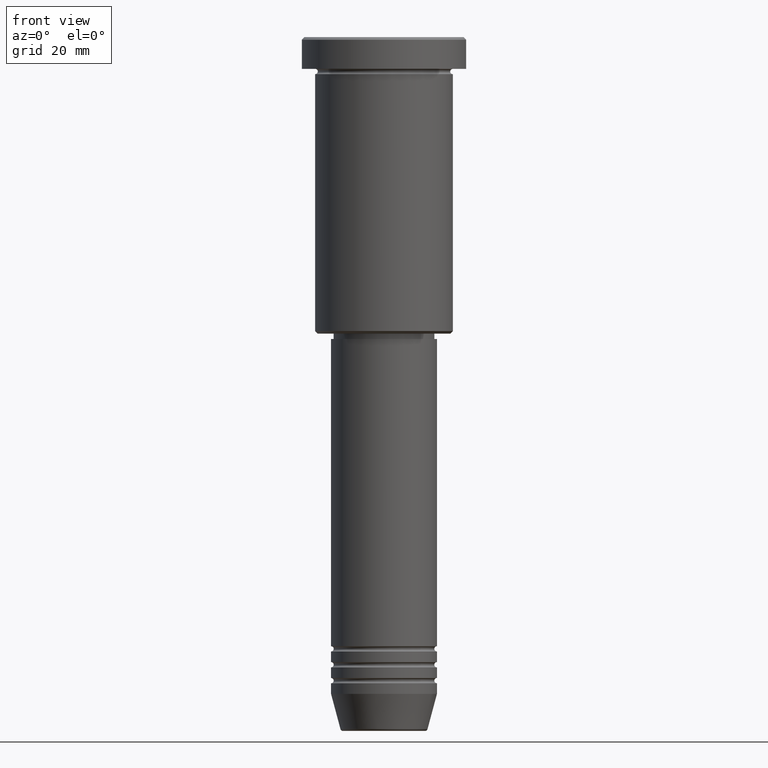
[diagram: clean part render]
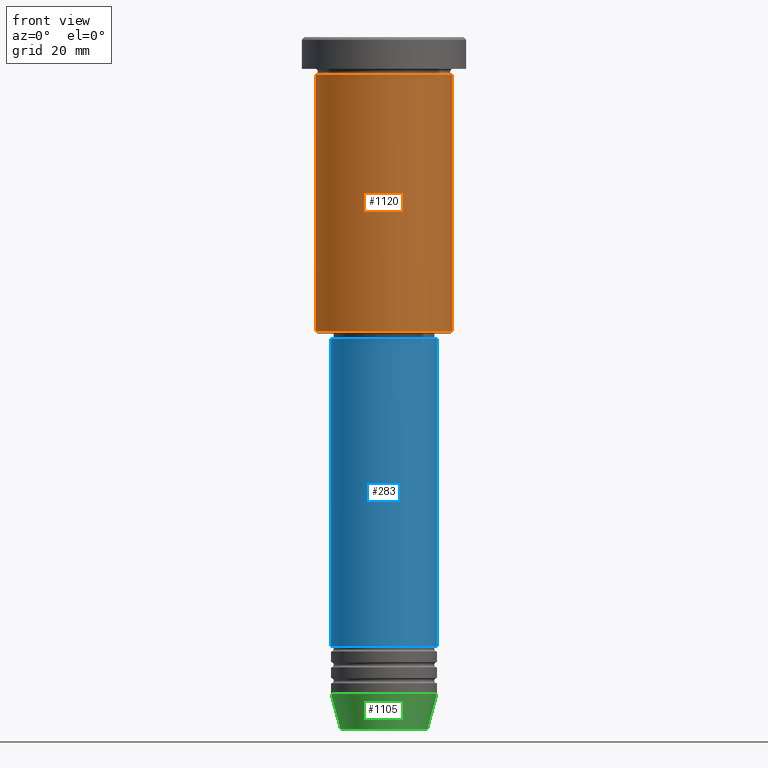
[diagram: same view with three faces highlighted in distinct colors, each labeled with its STEP entity id]
A machine part, front view with three faces highlighted in distinct colors.
Their STEP definitions:

[orange] entity #1120 — the highlighted cylindrical surface (partial cylindrical patch) has radius 13 mm, axis along (-0, -0, 1).
#10 = DIRECTION ( 'NONE',  ( -0.000000000000000000, -0.000000000000000000, 1.000000000000000000 ) ) ;
#45 = ORIENTED_EDGE ( 'NONE', *, *, #624, .F. ) ;
#57 = ORIENTED_EDGE ( 'NONE', *, *, #308, .T. ) ;
#68 = AXIS2_PLACEMENT_3D ( 'NONE', #630, #10, #559 ) ;
#77 = EDGE_CURVE ( 'NONE', #670, #722, #1145, .T. ) ;
#156 = VECTOR ( 'NONE', #1063, 1000.000000000000000 ) ;
#175 = CIRCLE ( 'NONE', #1172, 13.00000000000000000 ) ;
#202 = DIRECTION ( 'NONE',  ( -0.000000000000000000, -0.000000000000000000, 1.000000000000000000 ) ) ;
#203 = VERTEX_POINT ( 'NONE', #990 ) ;
#225 = LINE ( 'NONE', #856, #537 ) ;
#308 = EDGE_CURVE ( 'NONE', #727, #203, #225, .T. ) ;
#322 = CARTESIAN_POINT ( 'NONE',  ( -13.00000000000000000, 1.592040838891559095E-15, 0.000000000000000000 ) ) ;
#350 = ORIENTED_EDGE ( 'NONE', *, *, #437, .T. ) ;
#400 = DIRECTION ( 'NONE',  ( -0.000000000000000000, -0.000000000000000000, 1.000000000000000000 ) ) ;
#437 = EDGE_CURVE ( 'NONE', #670, #727, #478, .T. ) ;
#478 = CIRCLE ( 'NONE', #498, 13.00000000000000000 ) ;
#483 = ORIENTED_EDGE ( 'NONE', *, *, #77, .F. ) ;
#498 = AXIS2_PLACEMENT_3D ( 'NONE', #805, #796, #720 ) ;
#537 = VECTOR ( 'NONE', #400, 1000.000000000000000 ) ;
#559 = DIRECTION ( 'NONE',  ( 1.000000000000000000, 0.000000000000000000, 0.000000000000000000 ) ) ;
#617 = CYLINDRICAL_SURFACE ( 'NONE', #68, 13.00000000000000000 ) ;
#624 = EDGE_CURVE ( 'NONE', #722, #203, #175, .T. ) ;
#630 = CARTESIAN_POINT ( 'NONE',  ( 0.000000000000000000, 0.000000000000000000, 0.000000000000000000 ) ) ;
#670 = VERTEX_POINT ( 'NONE', #815 ) ;
#705 = FACE_OUTER_BOUND ( 'NONE', #854, .T. ) ;
#720 = DIRECTION ( 'NONE',  ( -1.000000000000000000, 0.000000000000000000, 0.000000000000000000 ) ) ;
#722 = VERTEX_POINT ( 'NONE', #896 ) ;
#727 = VERTEX_POINT ( 'NONE', #1073 ) ;
#731 = CARTESIAN_POINT ( 'NONE',  ( 0.000000000000000000, 0.000000000000000000, -6.999999999999995559 ) ) ;
#750 = DIRECTION ( 'NONE',  ( 1.000000000000000000, 0.000000000000000000, 0.000000000000000000 ) ) ;
#796 = DIRECTION ( 'NONE',  ( -0.000000000000000000, -0.000000000000000000, 1.000000000000000000 ) ) ;
#805 = CARTESIAN_POINT ( 'NONE',  ( 0.000000000000000000, 0.000000000000000000, -55.49999999999996447 ) ) ;
#815 = CARTESIAN_POINT ( 'NONE',  ( -13.00000000000000000, 1.592040838891559095E-15, -55.49999999999996447 ) ) ;
#854 = EDGE_LOOP ( 'NONE', ( #483, #350, #57, #45 ) ) ;
#856 = CARTESIAN_POINT ( 'NONE',  ( 13.00000000000000000, 0.000000000000000000, 0.000000000000000000 ) ) ;
#896 = CARTESIAN_POINT ( 'NONE',  ( -13.00000000000000000, 1.592040838891559095E-15, -6.999999999999995559 ) ) ;
#990 = CARTESIAN_POINT ( 'NONE',  ( 13.00000000000000000, 0.000000000000000000, -6.999999999999995559 ) ) ;
#1063 = DIRECTION ( 'NONE',  ( -0.000000000000000000, -0.000000000000000000, 1.000000000000000000 ) ) ;
#1073 = CARTESIAN_POINT ( 'NONE',  ( 13.00000000000000000, 0.000000000000000000, -55.49999999999996447 ) ) ;
#1120 = ADVANCED_FACE ( 'NONE', ( #705 ), #617, .T. ) ;
#1145 = LINE ( 'NONE', #322, #156 ) ;
#1172 = AXIS2_PLACEMENT_3D ( 'NONE', #731, #202, #750 ) ;

[blue] entity #283 — the highlighted cylindrical surface (partial cylindrical patch) has radius 10 mm, axis along (-0, -0, 1).
#14 = CARTESIAN_POINT ( 'NONE',  ( -10.00000000000000000, 1.224646799147353256E-15, -57.00000000000000000 ) ) ;
#30 = DIRECTION ( 'NONE',  ( -0.000000000000000000, -0.000000000000000000, 1.000000000000000000 ) ) ;
#35 = ORIENTED_EDGE ( 'NONE', *, *, #1048, .T. ) ;
#84 = ORIENTED_EDGE ( 'NONE', *, *, #1152, .F. ) ;
#85 = LINE ( 'NONE', #193, #888 ) ;
#112 = DIRECTION ( 'NONE',  ( -0.000000000000000000, -0.000000000000000000, 1.000000000000000000 ) ) ;
#115 = EDGE_CURVE ( 'NONE', #300, #518, #439, .T. ) ;
#193 = CARTESIAN_POINT ( 'NONE',  ( -10.00000000000000000, 1.224646799147353256E-15, 0.000000000000000000 ) ) ;
#235 = VERTEX_POINT ( 'NONE', #14 ) ;
#268 = AXIS2_PLACEMENT_3D ( 'NONE', #463, #112, #505 ) ;
#283 = ADVANCED_FACE ( 'NONE', ( #564 ), #538, .T. ) ;
#293 = EDGE_LOOP ( 'NONE', ( #84, #628, #35, #563 ) ) ;
#300 = VERTEX_POINT ( 'NONE', #591 ) ;
#348 = CARTESIAN_POINT ( 'NONE',  ( 10.00000000000000000, 0.000000000000000000, -114.9999999999999574 ) ) ;
#439 = CIRCLE ( 'NONE', #458, 10.00000000000000000 ) ;
#442 = DIRECTION ( 'NONE',  ( -0.000000000000000000, -0.000000000000000000, 1.000000000000000000 ) ) ;
#458 = AXIS2_PLACEMENT_3D ( 'NONE', #529, #900, #639 ) ;
#463 = CARTESIAN_POINT ( 'NONE',  ( 0.000000000000000000, 0.000000000000000000, 0.000000000000000000 ) ) ;
#505 = DIRECTION ( 'NONE',  ( 1.000000000000000000, 0.000000000000000000, 0.000000000000000000 ) ) ;
#518 = VERTEX_POINT ( 'NONE', #348 ) ;
#529 = CARTESIAN_POINT ( 'NONE',  ( 0.000000000000000000, 0.000000000000000000, -114.9999999999999574 ) ) ;
#530 = CARTESIAN_POINT ( 'NONE',  ( 10.00000000000000000, 0.000000000000000000, -57.00000000000000000 ) ) ;
#538 = CYLINDRICAL_SURFACE ( 'NONE', #268, 10.00000000000000000 ) ;
#543 = VERTEX_POINT ( 'NONE', #530 ) ;
#563 = ORIENTED_EDGE ( 'NONE', *, *, #703, .F. ) ;
#564 = FACE_OUTER_BOUND ( 'NONE', #293, .T. ) ;
#583 = LINE ( 'NONE', #843, #1103 ) ;
#591 = CARTESIAN_POINT ( 'NONE',  ( -10.00000000000000000, 1.224646799147353256E-15, -114.9999999999999574 ) ) ;
#600 = DIRECTION ( 'NONE',  ( 1.000000000000000000, 0.000000000000000000, 0.000000000000000000 ) ) ;
#628 = ORIENTED_EDGE ( 'NONE', *, *, #115, .T. ) ;
#639 = DIRECTION ( 'NONE',  ( 1.000000000000000000, 0.000000000000000000, 0.000000000000000000 ) ) ;
#703 = EDGE_CURVE ( 'NONE', #235, #543, #1101, .T. ) ;
#797 = DIRECTION ( 'NONE',  ( -0.000000000000000000, -0.000000000000000000, 1.000000000000000000 ) ) ;
#843 = CARTESIAN_POINT ( 'NONE',  ( 10.00000000000000000, 0.000000000000000000, 0.000000000000000000 ) ) ;
#844 = AXIS2_PLACEMENT_3D ( 'NONE', #1154, #797, #600 ) ;
#888 = VECTOR ( 'NONE', #442, 1000.000000000000000 ) ;
#900 = DIRECTION ( 'NONE',  ( -0.000000000000000000, -0.000000000000000000, 1.000000000000000000 ) ) ;
#1048 = EDGE_CURVE ( 'NONE', #518, #543, #583, .T. ) ;
#1101 = CIRCLE ( 'NONE', #844, 10.00000000000000000 ) ;
#1103 = VECTOR ( 'NONE', #30, 1000.000000000000000 ) ;
#1152 = EDGE_CURVE ( 'NONE', #300, #235, #85, .T. ) ;
#1154 = CARTESIAN_POINT ( 'NONE',  ( 0.000000000000000000, 0.000000000000000000, -57.00000000000000000 ) ) ;

[green] entity #1105 — the highlighted conical surface has half-angle 15 deg.
#31 = EDGE_CURVE ( 'NONE', #286, #221, #690, .T. ) ;
#100 = VECTOR ( 'NONE', #1168, 1000.000000000000000 ) ;
#136 = ORIENTED_EDGE ( 'NONE', *, *, #1084, .F. ) ;
#166 = DIRECTION ( 'NONE',  ( -0.000000000000000000, -0.000000000000000000, 1.000000000000000000 ) ) ;
#206 = ORIENTED_EDGE ( 'NONE', *, *, #31, .T. ) ;
#221 = VERTEX_POINT ( 'NONE', #556 ) ;
#224 = DIRECTION ( 'NONE',  ( 0.2588190451025213501, 0.000000000000000000, 0.9659258262890680902 ) ) ;
#237 = LINE ( 'NONE', #417, #100 ) ;
#245 = FACE_OUTER_BOUND ( 'NONE', #973, .T. ) ;
#249 = VECTOR ( 'NONE', #224, 1000.000000000000000 ) ;
#286 = VERTEX_POINT ( 'NONE', #486 ) ;
#334 = CARTESIAN_POINT ( 'NONE',  ( 0.000000000000000000, 0.000000000000000000, -124.0000000000000000 ) ) ;
#335 = CARTESIAN_POINT ( 'NONE',  ( 0.000000000000000000, 0.000000000000000000, -130.6294095225512422 ) ) ;
#339 = DIRECTION ( 'NONE',  ( 1.000000000000000000, 0.000000000000000000, 0.000000000000000000 ) ) ;
#366 = AXIS2_PLACEMENT_3D ( 'NONE', #335, #166, #701 ) ;
#371 = DIRECTION ( 'NONE',  ( 1.000000000000000000, 0.000000000000000000, 0.000000000000000000 ) ) ;
#407 = CONICAL_SURFACE ( 'NONE', #791, 10.00000000000000000, 0.2617993877991500740 ) ;
#417 = CARTESIAN_POINT ( 'NONE',  ( -10.00000000000000000, 1.224646799147353256E-15, -124.0000000000000000 ) ) ;
#486 = CARTESIAN_POINT ( 'NONE',  ( 8.223655072137191269, 0.000000000000000000, -130.6294095225512422 ) ) ;
#489 = CARTESIAN_POINT ( 'NONE',  ( -10.00000000000000000, 1.224646799147353256E-15, -124.0000000000000000 ) ) ;
#556 = CARTESIAN_POINT ( 'NONE',  ( 10.00000000000000000, 0.000000000000000000, -124.0000000000000000 ) ) ;
#576 = CIRCLE ( 'NONE', #366, 8.223655072137191269 ) ;
#690 = LINE ( 'NONE', #697, #249 ) ;
#697 = CARTESIAN_POINT ( 'NONE',  ( 10.00000000000000000, 0.000000000000000000, -124.0000000000000000 ) ) ;
#701 = DIRECTION ( 'NONE',  ( 1.000000000000000000, 0.000000000000000000, 0.000000000000000000 ) ) ;
#711 = EDGE_CURVE ( 'NONE', #1053, #286, #576, .T. ) ;
#791 = AXIS2_PLACEMENT_3D ( 'NONE', #334, #1162, #339 ) ;
#816 = ORIENTED_EDGE ( 'NONE', *, *, #831, .F. ) ;
#831 = EDGE_CURVE ( 'NONE', #1037, #221, #924, .T. ) ;
#924 = CIRCLE ( 'NONE', #1079, 10.00000000000000000 ) ;
#973 = EDGE_LOOP ( 'NONE', ( #136, #1022, #206, #816 ) ) ;
#1016 = CARTESIAN_POINT ( 'NONE',  ( 0.000000000000000000, 0.000000000000000000, -124.0000000000000000 ) ) ;
#1022 = ORIENTED_EDGE ( 'NONE', *, *, #711, .T. ) ;
#1027 = DIRECTION ( 'NONE',  ( -0.000000000000000000, -0.000000000000000000, 1.000000000000000000 ) ) ;
#1037 = VERTEX_POINT ( 'NONE', #489 ) ;
#1053 = VERTEX_POINT ( 'NONE', #1130 ) ;
#1079 = AXIS2_PLACEMENT_3D ( 'NONE', #1016, #1027, #371 ) ;
#1084 = EDGE_CURVE ( 'NONE', #1053, #1037, #237, .T. ) ;
#1105 = ADVANCED_FACE ( 'NONE', ( #245 ), #407, .T. ) ;
#1130 = CARTESIAN_POINT ( 'NONE',  ( -8.223655072137191269, 1.115877042642912054E-15, -130.6294095225512422 ) ) ;
#1162 = DIRECTION ( 'NONE',  ( -0.000000000000000000, -0.000000000000000000, 1.000000000000000000 ) ) ;
#1168 = DIRECTION ( 'NONE',  ( -0.2588190451025213501, 3.169619151431772337E-17, 0.9659258262890680902 ) ) ;